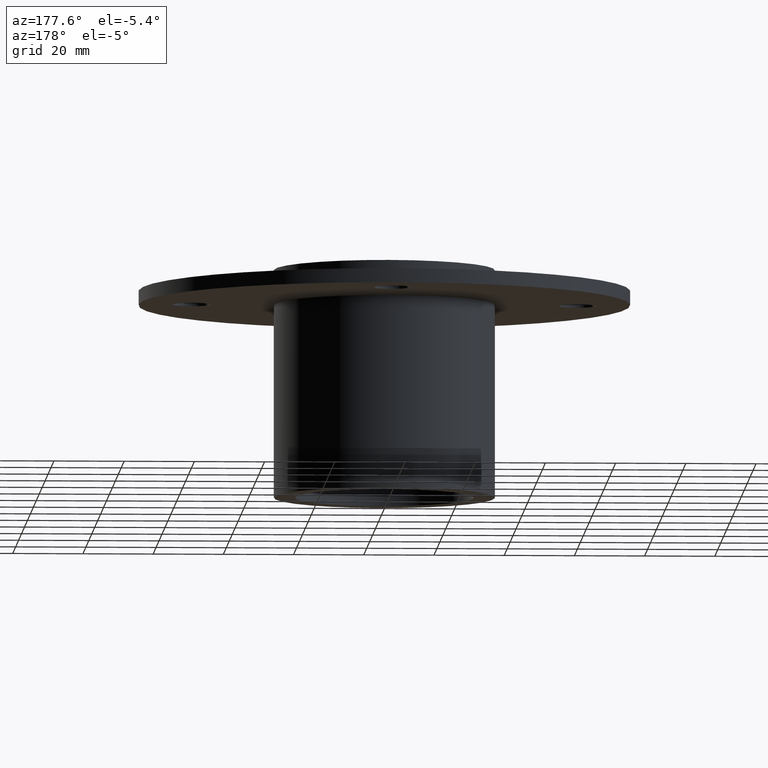
[diagram: clean part render]
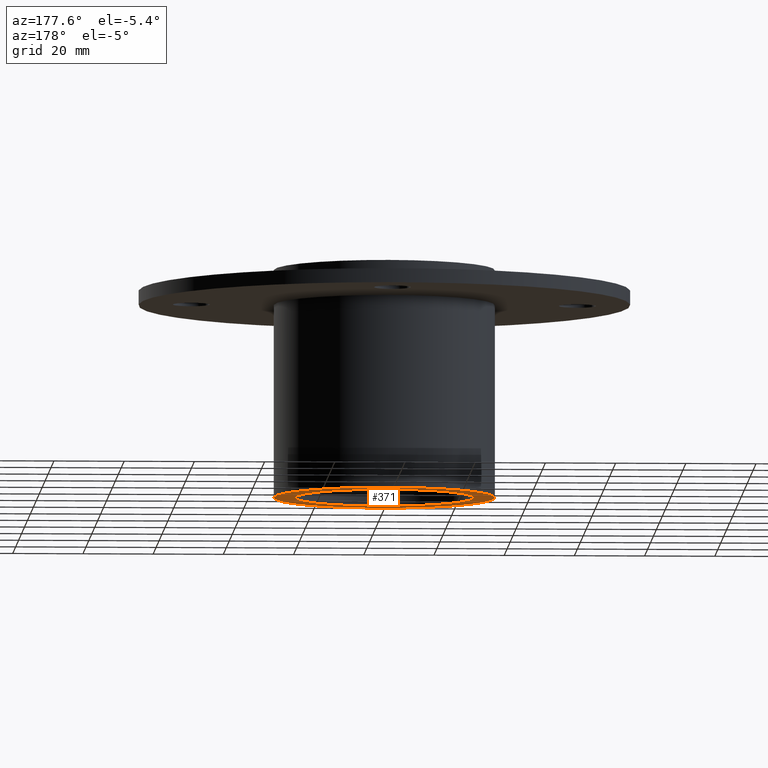
[diagram: same view with one face highlighted and labeled with its STEP entity id]
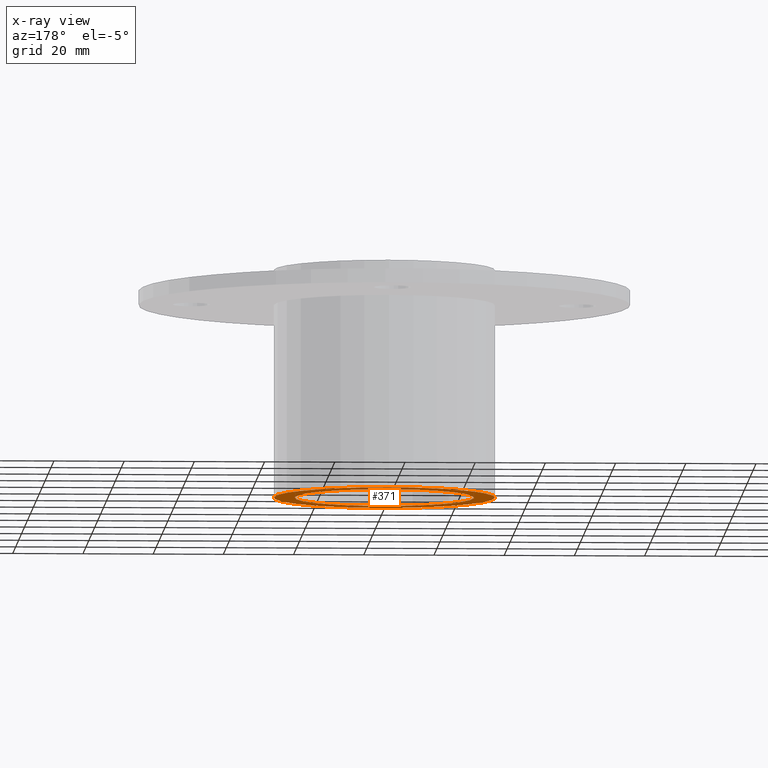
[diagram: x-ray of the same camera — body ghosted, the highlighted face saturated]
A machine part, auxiliary view. The second image highlights one B-rep face of the part: STEP entity #371.
The next image is the same camera in x-ray: the body ghosted, the highlighted face saturated — about 0% of this face is hidden behind the body in this view.
In plain terms, the highlighted planar face has unit normal (0, 0, 1).
Its self-contained STEP definition (entity closure, byte-faithful):
#317=CARTESIAN_POINT('',(-25.500000000000007,-3.122849E-015,-65.0));
#318=VERTEX_POINT('',#317);
#319=CARTESIAN_POINT('',(0.0,0.0,-65.0));
#320=DIRECTION('',(0.0,0.0,1.0));
#321=DIRECTION('',(1.0,0.0,0.0));
#322=AXIS2_PLACEMENT_3D('',#319,#320,#321);
#323=CIRCLE('',#322,25.500000000000007);
#324=EDGE_CURVE('',#318,#318,#323,.T.);
#348=CARTESIAN_POINT('',(31.500000000000014,3.857637E-015,-65.0));
#349=VERTEX_POINT('',#348);
#350=CARTESIAN_POINT('',(0.0,0.0,-65.0));
#351=DIRECTION('',(0.0,0.0,-1.0));
#352=DIRECTION('',(-1.0,0.0,0.0));
#353=AXIS2_PLACEMENT_3D('',#350,#351,#352);
#354=CIRCLE('',#353,31.500000000000014);
#355=EDGE_CURVE('',#349,#349,#354,.T.);
#360=CARTESIAN_POINT('',(-2.201212E-015,0.0,-65.0));
#361=DIRECTION('',(0.0,0.0,1.0));
#362=DIRECTION('',(1.0,0.0,0.0));
#363=AXIS2_PLACEMENT_3D('',#360,#361,#362);
#364=PLANE('',#363);
#365=ORIENTED_EDGE('',*,*,#355,.T.);
#366=EDGE_LOOP('',(#365));
#367=FACE_OUTER_BOUND('',#366,.T.);
#368=ORIENTED_EDGE('',*,*,#324,.T.);
#369=EDGE_LOOP('',(#368));
#370=FACE_BOUND('',#369,.T.);
#371=ADVANCED_FACE('',(#367,#370),#364,.F.);